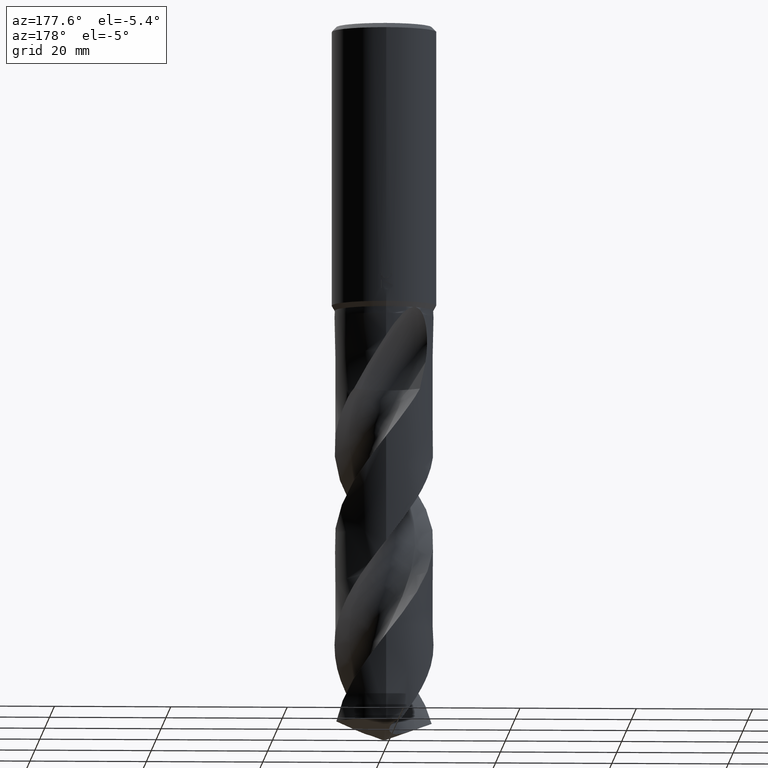
[diagram: clean part render]
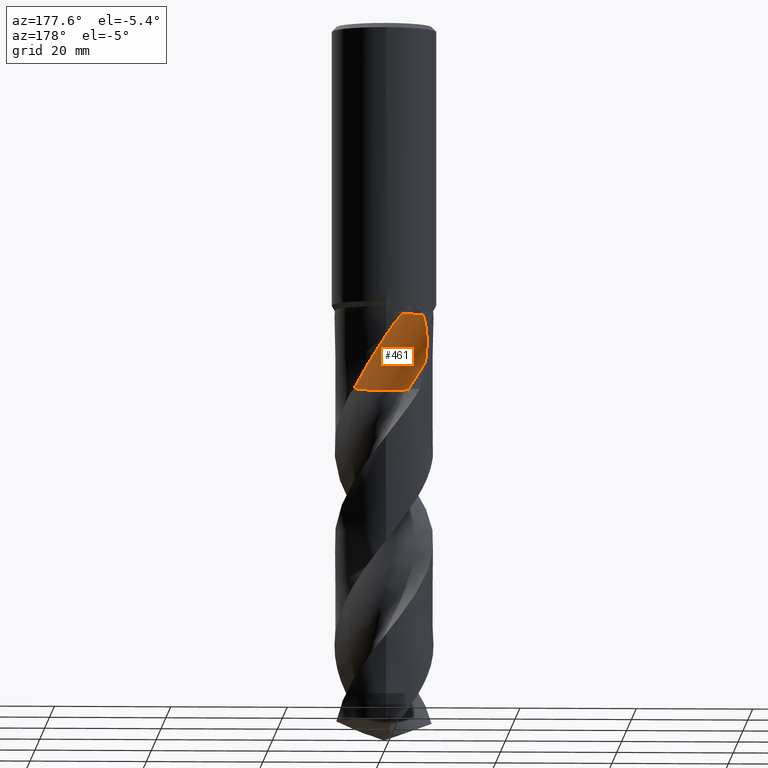
[diagram: same view with one face highlighted and labeled with its STEP entity id]
A machine part, auxiliary view. The second image highlights one B-rep face of the part: STEP entity #461.
In plain terms, the highlighted face is a SurfaceOfRevolution surface.
Its self-contained STEP definition (entity closure, byte-faithful):
#287=EDGE_CURVE('',#577,#435,#794,.T.);
#305=VERTEX_POINT('',#814);
#353=VERTEX_POINT('',#870);
#383=EDGE_CURVE('',#353,#613,#902,.T.);
#435=VERTEX_POINT('',#958);
#451=EDGE_CURVE('',#479,#305,#975,.T.);
#461=ADVANCED_FACE('',(#987),#988,.F.);
#479=VERTEX_POINT('',#1009);
#515=EDGE_CURVE('',#577,#353,#1049,.T.);
#527=EDGE_CURVE('',#613,#305,#1062,.T.);
#553=VERTEX_POINT('',#1091);
#577=VERTEX_POINT('',#1116);
#613=VERTEX_POINT('',#1154);
#619=EDGE_CURVE('',#553,#479,#1161,.T.);
#733=EDGE_CURVE('',#435,#553,#1285,.T.);
#794=B_SPLINE_CURVE_WITH_KNOTS('',3,(#1447,#1448,#1449,#1450,#1451,#1452,#1453,#1454,#1455,#1456,#1457,#1458,#1459,#1460),.UNSPECIFIED.,.F.,.F.,(4,2,2,2,2,2,4),(0.0,4.16452110111626,6.43844228222075,8.49803183599226,10.8907611385501,13.7649658544431,15.2376569579458),.UNSPECIFIED.);
#814=CARTESIAN_POINT('',(-6.91587389705831,4.94157745294276,-58.2027032511228));
#870=CARTESIAN_POINT('',(-0.616854885912329,2.58365326561058,-62.857));
#902=CIRCLE('',#2987,5.66666667);
#958=CARTESIAN_POINT('',(-2.52028090589317E-012,8.49990546691994,-53.8217188850775));
#975=B_SPLINE_CURVE_WITH_KNOTS('',3,(#4019,#4020,#4021,#4022,#4023,#4024,#4025,#4026,#4027,#4028),.UNSPECIFIED.,.F.,.F.,(4,2,2,2,4),(0.0,1.59712686950799,3.82914092360695,5.00019645036042,6.2224753665556),.UNSPECIFIED.);
#987=FACE_OUTER_BOUND('',#4040,.T.);
#988=SURFACE_OF_REVOLUTION('',#4041,#4042);
#1009=CARTESIAN_POINT('',(-6.44231699010144,5.54480403702876,-50.0));
#1049=CIRCLE('',#4342,5.66666667);
#1062=CIRCLE('',#4359,36.9347091670689);
#1091=CARTESIAN_POINT('',(-2.8921008249099,7.99275001664355,-50.0));
#1116=CARTESIAN_POINT('',(5.41628966392335,6.55075712748483,-62.857));
#1154=CARTESIAN_POINT('',(-4.00693842901008,4.20972824098991,-62.857));
#1161=B_SPLINE_CURVE_WITH_KNOTS('',3,(#4555,#4556,#4557,#4558,#4559,#4560,#4561,#4562,#4563,#4564),.UNSPECIFIED.,.F.,.F.,(4,2,2,2,4),(0.0,1.84046416010429,3.52597582610569,5.23045837806942,7.30104064726369),.UNSPECIFIED.);
#1285=B_SPLINE_CURVE_WITH_KNOTS('',3,(#5385,#5386,#5387,#5388,#5389,#5390,#5391,#5392,#5393,#5394,#5395,#5396,#5397,#5398),.UNSPECIFIED.,.F.,.F.,(4,2,2,2,2,2,4),(0.0,4.16452110111626,6.43844228222075,8.49803183599226,10.8907611385501,13.7649658544431,15.2376569579458),.UNSPECIFIED.);
#1447=CARTESIAN_POINT('',(5.41628966392335,6.55075712748484,-62.857));
#1448=CARTESIAN_POINT('',(4.85560486769929,7.0143397076693,-61.6747352356441));
#1449=CARTESIAN_POINT('',(4.21094235285372,7.42643435002595,-60.5724823536233));
#1450=CARTESIAN_POINT('',(3.08684150523683,7.93154221144858,-58.7310997567797));
#1451=CARTESIAN_POINT('',(2.68233689149408,8.07684268812841,-58.0832404550152));
#1452=CARTESIAN_POINT('',(1.89926806888016,8.29399836131771,-56.8291577922511));
#1453=CARTESIAN_POINT('',(1.52420001308665,8.3707187806225,-56.2287792191156));
#1454=CARTESIAN_POINT('',(0.712337952620786,8.48144427690677,-54.9348106618254));
#1455=CARTESIAN_POINT('',(0.268761995696151,8.50743926841456,-54.2310918227217));
#1456=CARTESIAN_POINT('',(-0.716305928892583,8.48671723791442,-52.7256088583031));
#1457=CARTESIAN_POINT('',(-1.3003510078676,8.42262841217451,-51.8689752644792));
#1458=CARTESIAN_POINT('',(-2.21282389263096,8.21293743140772,-50.7245682904819));
#1459=CARTESIAN_POINT('',(-2.54590422194253,8.11801849245332,-50.3397558310477));
#1460=CARTESIAN_POINT('',(-2.89210082490989,7.99275001664356,-50.0));
#2987=AXIS2_PLACEMENT_3D('',#5692,#5693,#5694);
#4019=CARTESIAN_POINT('',(-6.44231699010143,5.54480403702876,-50.0));
#4020=CARTESIAN_POINT('',(-6.65234662312354,5.30077876418268,-50.4239846973771));
#4021=CARTESIAN_POINT('',(-6.81775846566666,5.08059134191563,-50.9508608950497));
#4022=CARTESIAN_POINT('',(-7.11425766056323,4.66104842509522,-52.400733854719));
#4023=CARTESIAN_POINT('',(-7.21233829846752,4.49785061358491,-53.4254033619083));
#4024=CARTESIAN_POINT('',(-7.22041583160893,4.4848688598117,-55.1722359946098));
#4025=CARTESIAN_POINT('',(-7.19717918416343,4.52293833382546,-55.7734184922766));
#4026=CARTESIAN_POINT('',(-7.0988033973917,4.67590496165903,-56.9899016127423));
#4027=CARTESIAN_POINT('',(-7.02165837713948,4.79352767587232,-57.6010280896414));
#4028=CARTESIAN_POINT('',(-6.91587389705831,4.94157745294276,-58.2027032511228));
#4040=EDGE_LOOP('',(#5778,#5779,#5780,#5781,#5782,#5783,#5784));
#4041=(B_SPLINE_CURVE(3,(#5786,#5787,#5788,#5789,#5790,#5791,#5792,#5793,#5794),.UNSPECIFIED.,.F.,.F.)B_SPLINE_CURVE_WITH_KNOTS((4,1,3,1,4),(-2.8563687736172,-2.5535825644495,-2.2507963552818,-1.94801014611411,-1.64522393694641),.UNSPECIFIED.)RATIONAL_B_SPLINE_CURVE((1.09167948846214,1.03055982948738,0.969440170512619,1.03055982948738,1.09167948846214,1.03055982948738,0.969440170512619,1.03055982948738,1.09167948846214))BOUNDED_CURVE()REPRESENTATION_ITEM('')GEOMETRIC_REPRESENTATION_ITEM()CURVE());
#4042=AXIS1_PLACEMENT('',#5801,#5802);
#4342=AXIS2_PLACEMENT_3D('',#5884,#5885,#5886);
#4359=AXIS2_PLACEMENT_3D('',#5901,#5902,#5903);
#4555=CARTESIAN_POINT('',(-2.6632786598887,8.5499,-50.0));
#4556=CARTESIAN_POINT('',(-2.86149558573939,7.96931611981413,-50.0));
#4557=CARTESIAN_POINT('',(-3.16181573080066,7.4334417762291,-49.999999999978));
#4558=CARTESIAN_POINT('',(-3.93873148401868,6.55487228811261,-49.999999999978));
#4559=CARTESIAN_POINT('',(-4.38494984181175,6.21532766769914,-50.0000000000013));
#4560=CARTESIAN_POINT('',(-5.39882340800127,5.72287512631274,-50.0000000000013));
#4561=CARTESIAN_POINT('',(-5.94968494668544,5.58077485231737,-50.0000000000002));
#4562=CARTESIAN_POINT('',(-7.2029108149696,5.48782507693008,-50.0000000000002));
#4563=CARTESIAN_POINT('',(-7.89285928011483,5.58549339197757,-50.0));
#4564=CARTESIAN_POINT('',(-8.5499,5.80048967445236,-50.0));
#5385=CARTESIAN_POINT('',(5.41628966392335,6.55075712748484,-62.857));
#5386=CARTESIAN_POINT('',(4.85560486769929,7.0143397076693,-61.6747352356441));
#5387=CARTESIAN_POINT('',(4.21094235285372,7.42643435002595,-60.5724823536233));
#5388=CARTESIAN_POINT('',(3.08684150523683,7.93154221144858,-58.7310997567797));
#5389=CARTESIAN_POINT('',(2.68233689149408,8.07684268812841,-58.0832404550152));
#5390=CARTESIAN_POINT('',(1.89926806888016,8.29399836131771,-56.8291577922511));
#5391=CARTESIAN_POINT('',(1.52420001308665,8.3707187806225,-56.2287792191156));
#5392=CARTESIAN_POINT('',(0.712337952620786,8.48144427690677,-54.9348106618254));
#5393=CARTESIAN_POINT('',(0.268761995696151,8.50743926841456,-54.2310918227217));
#5394=CARTESIAN_POINT('',(-0.716305928892583,8.48671723791442,-52.7256088583031));
#5395=CARTESIAN_POINT('',(-1.3003510078676,8.42262841217451,-51.8689752644792));
#5396=CARTESIAN_POINT('',(-2.21282389263096,8.21293743140772,-50.7245682904819));
#5397=CARTESIAN_POINT('',(-2.54590422194253,8.11801849245332,-50.3397558310477));
#5398=CARTESIAN_POINT('',(-2.89210082490989,7.99275001664356,-50.0));
#5692=CARTESIAN_POINT('',(2.38047251038822E-005,8.21664286527489,-62.857));
#5693=DIRECTION('',(0.0,0.0,-1.0));
#5694=DIRECTION('',(0.70710258034023,0.707110982007909,0.0));
#5778=ORIENTED_EDGE('',*,*,#451,.F.);
#5779=ORIENTED_EDGE('',*,*,#619,.F.);
#5780=ORIENTED_EDGE('',*,*,#733,.F.);
#5781=ORIENTED_EDGE('',*,*,#287,.F.);
#5782=ORIENTED_EDGE('',*,*,#515,.T.);
#5783=ORIENTED_EDGE('',*,*,#383,.T.);
#5784=ORIENTED_EDGE('',*,*,#527,.T.);
#5786=CARTESIAN_POINT('',(-4.00693842901008,4.20972824098991,-62.857));
#5787=CARTESIAN_POINT('',(-3.22209737800622,3.42487786464363,-62.857));
#5788=CARTESIAN_POINT('',(-1.18128661623317,2.30967835127867,-62.857));
#5789=CARTESIAN_POINT('',(1.13145502603495,2.55422817462162,-62.857));
#5790=CARTESIAN_POINT('',(2.15777786903085,2.9768710623372,-62.857));
#5791=CARTESIAN_POINT('',(3.18410071202675,3.39951395005277,-62.857));
#5792=CARTESIAN_POINT('',(4.99838650695117,4.85448665574646,-62.857));
#5793=CARTESIAN_POINT('',(5.66207788864126,7.08340842867802,-62.857));
#5794=CARTESIAN_POINT('',(5.666642554493,8.1933384951315,-62.857));
#5801=CARTESIAN_POINT('',(-2.88139392647916,41.08333335,-64.6578712040495));
#5802=DIRECTION('',(0.847998304005088,-0.0,0.52999894000318));
#5884=CARTESIAN_POINT('',(2.38047251038822E-005,8.21664286527489,-62.857));
#5885=DIRECTION('',(0.0,0.0,-1.0));
#5886=DIRECTION('',(0.70710258034023,0.707110982007909,0.0));
#5901=CARTESIAN_POINT('',(-2.88139392647916,41.08333335,-64.6578712040495));
#5902=DIRECTION('',(-0.847998304005088,-1.04171959205975E-017,-0.52999894000318));
#5903=DIRECTION('',(-0.0535598121569932,-0.994880693157365,0.0856956994511891));